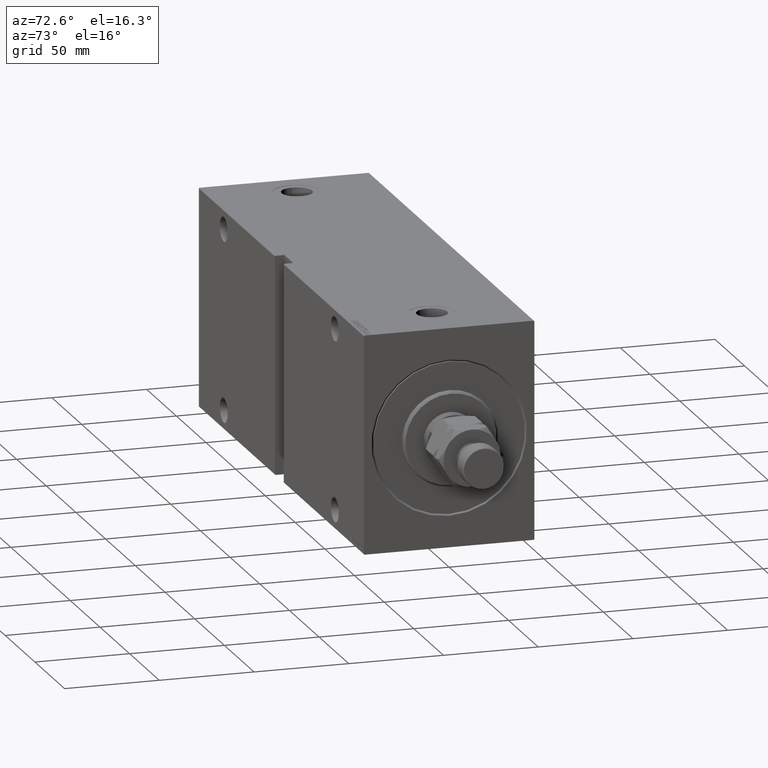
[diagram: clean part render]
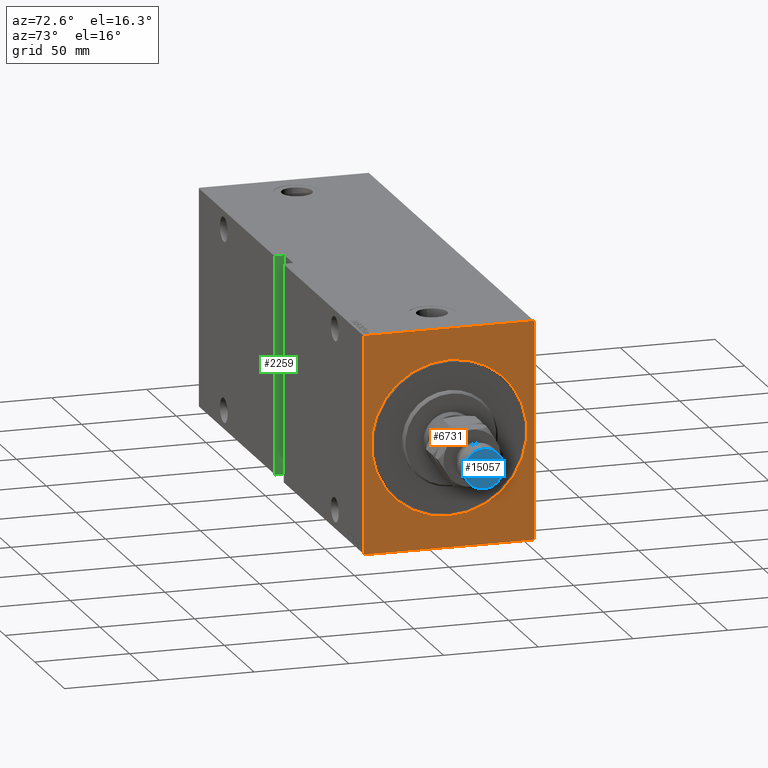
[diagram: same view with three faces highlighted in distinct colors, each labeled with its STEP entity id]
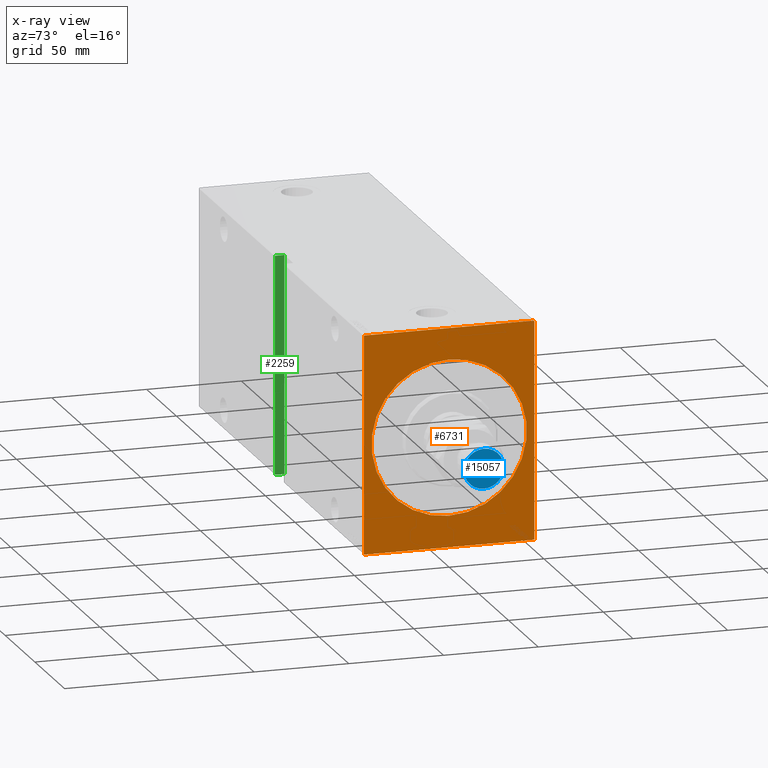
[diagram: x-ray of the same camera — body ghosted, the three highlighted faces saturated]
A machine part, auxiliary view with three faces highlighted in distinct colors.
The next image is the same camera in x-ray (body ghosted, the three faces saturated) — at least one of them is partly hidden behind the body in this view.
Their STEP definitions:

[orange] entity #6731 — the highlighted planar face has unit normal (-1, 0, 0).
#546 = VECTOR ( 'NONE', #42029, 1000.000000000000114 ) ;
#1678 = VERTEX_POINT ( 'NONE', #27966 ) ;
#3711 = CARTESIAN_POINT ( 'NONE',  ( 0.000000000000000000, 0.000000000000000000, 0.000000000000000000 ) ) ;
#4026 = ORIENTED_EDGE ( 'NONE', *, *, #45307, .T. ) ;
#4610 = EDGE_CURVE ( 'NONE', #22235, #4636, #45523, .T. ) ;
#4636 = VERTEX_POINT ( 'NONE', #31552 ) ;
#4903 = CARTESIAN_POINT ( 'NONE',  ( 0.000000000000000000, 45.00000000000001421, -57.50000000000000711 ) ) ;
#5828 = LINE ( 'NONE', #4903, #32427 ) ;
#5842 = VECTOR ( 'NONE', #11745, 1000.000000000000000 ) ;
#6158 = VERTEX_POINT ( 'NONE', #6173 ) ;
#6173 = CARTESIAN_POINT ( 'NONE',  ( 0.000000000000000000, 44.69999999999998863, -57.50000000000000711 ) ) ;
#6731 = ADVANCED_FACE ( 'NONE', ( #11374, #24675 ), #35620, .F. ) ;
#6943 = DIRECTION ( 'NONE',  ( 1.000000000000000000, 0.000000000000000000, -0.000000000000000000 ) ) ;
#7402 = ORIENTED_EDGE ( 'NONE', *, *, #8455, .F. ) ;
#7403 = DIRECTION ( 'NONE',  ( 0.000000000000000000, 0.000000000000000000, -1.000000000000000000 ) ) ;
#7863 = CARTESIAN_POINT ( 'NONE',  ( 0.000000000000000000, 44.69999999999996021, 57.50000000000001421 ) ) ;
#8291 = CARTESIAN_POINT ( 'NONE',  ( 0.000000000000000000, 45.00000000000001421, -57.20000000000001705 ) ) ;
#8455 = EDGE_CURVE ( 'NONE', #39449, #4636, #9470, .T. ) ;
#8479 = ORIENTED_EDGE ( 'NONE', *, *, #4610, .T. ) ;
#8706 = EDGE_CURVE ( 'NONE', #1678, #9206, #39927, .T. ) ;
#9206 = VERTEX_POINT ( 'NONE', #21383 ) ;
#9470 = LINE ( 'NONE', #26922, #28141 ) ;
#11298 = AXIS2_PLACEMENT_3D ( 'NONE', #35806, #6943, #7403 ) ;
#11374 = FACE_BOUND ( 'NONE', #33097, .T. ) ;
#11651 = EDGE_CURVE ( 'NONE', #1678, #44199, #25332, .T. ) ;
#11745 = DIRECTION ( 'NONE',  ( 0.000000000000000000, -1.000000000000000000, -2.312964634635742957E-16 ) ) ;
#12004 = DIRECTION ( 'NONE',  ( -0.000000000000000000, -0.7071067811865474617, -0.7071067811865474617 ) ) ;
#13782 = CARTESIAN_POINT ( 'NONE',  ( 0.000000000000000000, 0.000000000000000000, 40.99999999999997868 ) ) ;
#14212 = CARTESIAN_POINT ( 'NONE',  ( 0.000000000000000000, -45.00000000000000000, -57.50000000000002132 ) ) ;
#14287 = EDGE_CURVE ( 'NONE', #39379, #44199, #5828, .T. ) ;
#14803 = CARTESIAN_POINT ( 'NONE',  ( 0.000000000000000000, -44.70000000000000284, -57.50000000000002132 ) ) ;
#15829 = DIRECTION ( 'NONE',  ( 0.000000000000000000, 0.000000000000000000, 1.000000000000000000 ) ) ;
#16964 = EDGE_CURVE ( 'NONE', #39379, #6158, #29463, .T. ) ;
#17737 = DIRECTION ( 'NONE',  ( 0.000000000000000000, 0.000000000000000000, -1.000000000000000000 ) ) ;
#17905 = DIRECTION ( 'NONE',  ( 1.000000000000000000, 0.000000000000000000, -0.000000000000000000 ) ) ;
#18625 = EDGE_CURVE ( 'NONE', #22235, #6158, #24465, .T. ) ;
#18691 = CIRCLE ( 'NONE', #29883, 40.99999999999997868 ) ;
#18703 = VERTEX_POINT ( 'NONE', #13782 ) ;
#19456 = CIRCLE ( 'NONE', #11298, 40.99999999999997868 ) ;
#20341 = CARTESIAN_POINT ( 'NONE',  ( 0.000000000000000000, -45.00000000000000000, 57.20000000000000284 ) ) ;
#21383 = CARTESIAN_POINT ( 'NONE',  ( 0.000000000000000000, -44.69999999999997442, 57.49999999999999289 ) ) ;
#22235 = VERTEX_POINT ( 'NONE', #14803 ) ;
#22620 = ORIENTED_EDGE ( 'NONE', *, *, #11651, .T. ) ;
#23622 = AXIS2_PLACEMENT_3D ( 'NONE', #3711, #17905, #43272 ) ;
#24465 = LINE ( 'NONE', #14212, #32319 ) ;
#24675 = FACE_OUTER_BOUND ( 'NONE', #40274, .T. ) ;
#24693 = DIRECTION ( 'NONE',  ( 0.000000000000000000, 1.000000000000000000, 1.541976423090495140E-16 ) ) ;
#25332 = LINE ( 'NONE', #7863, #36453 ) ;
#25482 = ORIENTED_EDGE ( 'NONE', *, *, #18625, .F. ) ;
#25770 = DIRECTION ( 'NONE',  ( -0.000000000000000000, 0.7071067811865721087, -0.7071067811865230368 ) ) ;
#25983 = CARTESIAN_POINT ( 'NONE',  ( 0.000000000000000000, 5.021051876504145807E-15, -40.99999999999997868 ) ) ;
#26345 = ORIENTED_EDGE ( 'NONE', *, *, #41948, .T. ) ;
#26922 = CARTESIAN_POINT ( 'NONE',  ( 0.000000000000000000, -45.00000000000000000, 57.49999999999999289 ) ) ;
#27469 = CARTESIAN_POINT ( 'NONE',  ( 0.000000000000000000, 45.00000000000001421, 57.19999999999996021 ) ) ;
#27815 = CARTESIAN_POINT ( 'NONE',  ( 0.000000000000000000, -44.70000000000000284, -57.50000000000002132 ) ) ;
#27966 = CARTESIAN_POINT ( 'NONE',  ( 0.000000000000000000, 44.69999999999996021, 57.50000000000001421 ) ) ;
#28088 = ORIENTED_EDGE ( 'NONE', *, *, #14287, .F. ) ;
#28141 = VECTOR ( 'NONE', #38116, 1000.000000000000000 ) ;
#29463 = LINE ( 'NONE', #8291, #31539 ) ;
#29675 = CARTESIAN_POINT ( 'NONE',  ( 0.000000000000000000, 45.00000000000001421, 57.50000000000001421 ) ) ;
#29883 = AXIS2_PLACEMENT_3D ( 'NONE', #42435, #38479, #17737 ) ;
#30554 = ORIENTED_EDGE ( 'NONE', *, *, #16964, .T. ) ;
#31132 = ORIENTED_EDGE ( 'NONE', *, *, #8706, .F. ) ;
#31539 = VECTOR ( 'NONE', #12004, 1000.000000000000114 ) ;
#31552 = CARTESIAN_POINT ( 'NONE',  ( 0.000000000000000000, -45.00000000000000000, -57.20000000000000284 ) ) ;
#32319 = VECTOR ( 'NONE', #24693, 1000.000000000000000 ) ;
#32427 = VECTOR ( 'NONE', #15829, 1000.000000000000000 ) ;
#32944 = CARTESIAN_POINT ( 'NONE',  ( 0.000000000000000000, 45.00000000000001421, -57.20000000000001705 ) ) ;
#33097 = EDGE_LOOP ( 'NONE', ( #38269, #4026 ) ) ;
#35620 = PLANE ( 'NONE',  #23622 ) ;
#35806 = CARTESIAN_POINT ( 'NONE',  ( 0.000000000000000000, 0.000000000000000000, 0.000000000000000000 ) ) ;
#36453 = VECTOR ( 'NONE', #25770, 1000.000000000000000 ) ;
#36643 = DIRECTION ( 'NONE',  ( -0.000000000000000000, 0.7071067811865474617, 0.7071067811865474617 ) ) ;
#37351 = VECTOR ( 'NONE', #36643, 1000.000000000000114 ) ;
#38116 = DIRECTION ( 'NONE',  ( 0.000000000000000000, 0.000000000000000000, -1.000000000000000000 ) ) ;
#38269 = ORIENTED_EDGE ( 'NONE', *, *, #40669, .T. ) ;
#38479 = DIRECTION ( 'NONE',  ( 1.000000000000000000, 0.000000000000000000, -0.000000000000000000 ) ) ;
#39379 = VERTEX_POINT ( 'NONE', #32944 ) ;
#39449 = VERTEX_POINT ( 'NONE', #20341 ) ;
#39927 = LINE ( 'NONE', #29675, #5842 ) ;
#40132 = LINE ( 'NONE', #43377, #37351 ) ;
#40274 = EDGE_LOOP ( 'NONE', ( #31132, #22620, #28088, #30554, #25482, #8479, #7402, #26345 ) ) ;
#40669 = EDGE_CURVE ( 'NONE', #18703, #45356, #18691, .T. ) ;
#41948 = EDGE_CURVE ( 'NONE', #39449, #9206, #40132, .T. ) ;
#42029 = DIRECTION ( 'NONE',  ( 0.000000000000000000, -0.7071067811865474617, 0.7071067811865474617 ) ) ;
#42435 = CARTESIAN_POINT ( 'NONE',  ( 0.000000000000000000, 0.000000000000000000, 0.000000000000000000 ) ) ;
#43272 = DIRECTION ( 'NONE',  ( -0.000000000000000000, 0.000000000000000000, -1.000000000000000000 ) ) ;
#43377 = CARTESIAN_POINT ( 'NONE',  ( 0.000000000000000000, -45.00000000000000000, 57.20000000000000284 ) ) ;
#44199 = VERTEX_POINT ( 'NONE', #27469 ) ;
#45307 = EDGE_CURVE ( 'NONE', #45356, #18703, #19456, .T. ) ;
#45356 = VERTEX_POINT ( 'NONE', #25983 ) ;
#45523 = LINE ( 'NONE', #27815, #546 ) ;

[blue] entity #15057 — the highlighted planar face has unit normal (1, 0, -0).
#1917 = AXIS2_PLACEMENT_3D ( 'NONE', #10365, #28280, #42494 ) ;
#2189 = AXIS2_PLACEMENT_3D ( 'NONE', #16683, #16457, #13441 ) ;
#2318 = ORIENTED_EDGE ( 'NONE', *, *, #10246, .T. ) ;
#2471 = EDGE_CURVE ( 'NONE', #11992, #44057, #30343, .T. ) ;
#6621 = DIRECTION ( 'NONE',  ( 1.000000000000000000, 0.000000000000000000, 0.000000000000000000 ) ) ;
#9506 = AXIS2_PLACEMENT_3D ( 'NONE', #24307, #41313, #6621 ) ;
#10246 = EDGE_CURVE ( 'NONE', #44057, #11992, #14085, .T. ) ;
#10365 = CARTESIAN_POINT ( 'NONE',  ( 0.000000000000000000, 0.000000000000000000, 45.00000000000000711 ) ) ;
#11271 = PLANE ( 'NONE',  #1917 ) ;
#11992 = VERTEX_POINT ( 'NONE', #16557 ) ;
#13441 = DIRECTION ( 'NONE',  ( 1.000000000000000000, 0.000000000000000000, 0.000000000000000000 ) ) ;
#13846 = FACE_OUTER_BOUND ( 'NONE', #38523, .T. ) ;
#14085 = CIRCLE ( 'NONE', #2189, 10.50000000000000178 ) ;
#14256 = CARTESIAN_POINT ( 'NONE',  ( -10.50000000000000178, 0.000000000000000000, 45.00000000000000711 ) ) ;
#15057 = ADVANCED_FACE ( 'NONE', ( #13846 ), #11271, .T. ) ;
#16457 = DIRECTION ( 'NONE',  ( 0.000000000000000000, 0.000000000000000000, 1.000000000000000000 ) ) ;
#16557 = CARTESIAN_POINT ( 'NONE',  ( 10.50000000000000178, 1.316495309083404815E-15, 45.00000000000000711 ) ) ;
#16683 = CARTESIAN_POINT ( 'NONE',  ( 0.000000000000000000, 0.000000000000000000, 45.00000000000000711 ) ) ;
#24307 = CARTESIAN_POINT ( 'NONE',  ( 0.000000000000000000, 0.000000000000000000, 45.00000000000000711 ) ) ;
#28280 = DIRECTION ( 'NONE',  ( 0.000000000000000000, 0.000000000000000000, 1.000000000000000000 ) ) ;
#30343 = CIRCLE ( 'NONE', #9506, 10.50000000000000178 ) ;
#35947 = ORIENTED_EDGE ( 'NONE', *, *, #2471, .T. ) ;
#38523 = EDGE_LOOP ( 'NONE', ( #2318, #35947 ) ) ;
#41313 = DIRECTION ( 'NONE',  ( 0.000000000000000000, 0.000000000000000000, 1.000000000000000000 ) ) ;
#42494 = DIRECTION ( 'NONE',  ( 1.000000000000000000, 0.000000000000000000, -0.000000000000000000 ) ) ;
#44057 = VERTEX_POINT ( 'NONE', #14256 ) ;

[green] entity #2259 — the highlighted planar face has unit normal (-1, 0, 0).
#311 = EDGE_CURVE ( 'NONE', #39664, #6066, #4812, .T. ) ;
#1400 = EDGE_LOOP ( 'NONE', ( #27891, #16721, #24206, #45099, #43019, #41297 ) ) ;
#2060 = DIRECTION ( 'NONE',  ( 0.000000000000000000, -0.7071067811865474617, -0.7071067811865474617 ) ) ;
#2088 = AXIS2_PLACEMENT_3D ( 'NONE', #13651, #40734, #40503 ) ;
#2259 = ADVANCED_FACE ( 'NONE', ( #30498 ), #45558, .F. ) ;
#3798 = DIRECTION ( 'NONE',  ( -0.000000000000000000, 0.7071067811865721087, -0.7071067811865230368 ) ) ;
#4401 = EDGE_CURVE ( 'NONE', #15923, #12098, #8987, .T. ) ;
#4812 = LINE ( 'NONE', #5509, #13917 ) ;
#5509 = CARTESIAN_POINT ( 'NONE',  ( 150.0000000000000284, 45.00000000000002132, -57.50000000000000711 ) ) ;
#6066 = VERTEX_POINT ( 'NONE', #24321 ) ;
#6262 = LINE ( 'NONE', #31178, #22945 ) ;
#8145 = EDGE_CURVE ( 'NONE', #15923, #41785, #6262, .T. ) ;
#8987 = LINE ( 'NONE', #16181, #26635 ) ;
#11689 = CARTESIAN_POINT ( 'NONE',  ( 150.0000000000000284, 44.70000000000001705, -57.50000000000000711 ) ) ;
#11911 = VERTEX_POINT ( 'NONE', #11689 ) ;
#12098 = VERTEX_POINT ( 'NONE', #18158 ) ;
#12976 = VECTOR ( 'NONE', #2060, 1000.000000000000114 ) ;
#13651 = CARTESIAN_POINT ( 'NONE',  ( 150.0000000000000284, 40.00000000000002132, -57.50000000000000711 ) ) ;
#13917 = VECTOR ( 'NONE', #29957, 1000.000000000000000 ) ;
#14595 = CARTESIAN_POINT ( 'NONE',  ( 150.0000000000000284, 40.00000000000002132, -57.50000000000000711 ) ) ;
#15923 = VERTEX_POINT ( 'NONE', #22638 ) ;
#16181 = CARTESIAN_POINT ( 'NONE',  ( 150.0000000000000284, 40.00000000000000711, 57.50000000000002132 ) ) ;
#16721 = ORIENTED_EDGE ( 'NONE', *, *, #17580, .T. ) ;
#17580 = EDGE_CURVE ( 'NONE', #6066, #11911, #40478, .T. ) ;
#18158 = CARTESIAN_POINT ( 'NONE',  ( 150.0000000000000284, 44.69999999999996021, 57.50000000000002132 ) ) ;
#18430 = VECTOR ( 'NONE', #3798, 1000.000000000000000 ) ;
#20763 = EDGE_CURVE ( 'NONE', #41785, #11911, #40431, .T. ) ;
#21035 = LINE ( 'NONE', #21261, #18430 ) ;
#21261 = CARTESIAN_POINT ( 'NONE',  ( 150.0000000000000284, 44.69999999999996021, 57.50000000000001421 ) ) ;
#22638 = CARTESIAN_POINT ( 'NONE',  ( 150.0000000000000284, 40.00000000000000711, 57.50000000000002132 ) ) ;
#22945 = VECTOR ( 'NONE', #38170, 1000.000000000000000 ) ;
#24206 = ORIENTED_EDGE ( 'NONE', *, *, #20763, .F. ) ;
#24321 = CARTESIAN_POINT ( 'NONE',  ( 150.0000000000000284, 45.00000000000002132, -57.20000000000001705 ) ) ;
#26635 = VECTOR ( 'NONE', #44826, 1000.000000000000000 ) ;
#26729 = CARTESIAN_POINT ( 'NONE',  ( 150.0000000000000284, 45.00000000000001421, -57.20000000000001705 ) ) ;
#27714 = EDGE_CURVE ( 'NONE', #12098, #39664, #21035, .T. ) ;
#27891 = ORIENTED_EDGE ( 'NONE', *, *, #311, .T. ) ;
#29957 = DIRECTION ( 'NONE',  ( -0.000000000000000000, 1.206764157201257045E-16, -1.000000000000000000 ) ) ;
#30498 = FACE_OUTER_BOUND ( 'NONE', #1400, .T. ) ;
#31178 = CARTESIAN_POINT ( 'NONE',  ( 150.0000000000000284, 40.00000000000002132, -57.50000000000000711 ) ) ;
#32384 = VECTOR ( 'NONE', #36253, 1000.000000000000000 ) ;
#36253 = DIRECTION ( 'NONE',  ( -0.000000000000000000, 1.000000000000000000, 1.261617073437677752E-16 ) ) ;
#38170 = DIRECTION ( 'NONE',  ( -0.000000000000000000, 1.206764157201257045E-16, -1.000000000000000000 ) ) ;
#39343 = CARTESIAN_POINT ( 'NONE',  ( 150.0000000000000284, 40.00000000000003553, -57.50000000000000711 ) ) ;
#39664 = VERTEX_POINT ( 'NONE', #43151 ) ;
#40431 = LINE ( 'NONE', #14595, #32384 ) ;
#40478 = LINE ( 'NONE', #26729, #12976 ) ;
#40503 = DIRECTION ( 'NONE',  ( 0.000000000000000000, 0.000000000000000000, -1.000000000000000000 ) ) ;
#40734 = DIRECTION ( 'NONE',  ( 1.000000000000000000, 0.000000000000000000, 0.000000000000000000 ) ) ;
#41297 = ORIENTED_EDGE ( 'NONE', *, *, #27714, .T. ) ;
#41785 = VERTEX_POINT ( 'NONE', #39343 ) ;
#43019 = ORIENTED_EDGE ( 'NONE', *, *, #4401, .T. ) ;
#43151 = CARTESIAN_POINT ( 'NONE',  ( 150.0000000000000284, 45.00000000000000711, 57.19999999999998863 ) ) ;
#44826 = DIRECTION ( 'NONE',  ( -0.000000000000000000, 1.000000000000000000, 1.261617073437677752E-16 ) ) ;
#45099 = ORIENTED_EDGE ( 'NONE', *, *, #8145, .F. ) ;
#45558 = PLANE ( 'NONE',  #2088 ) ;